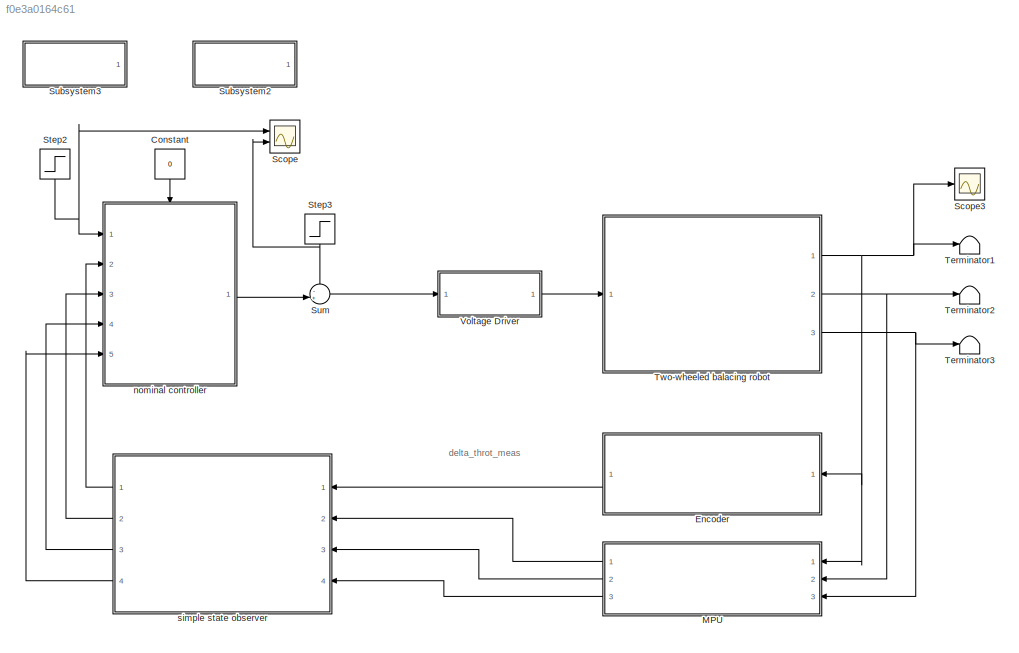
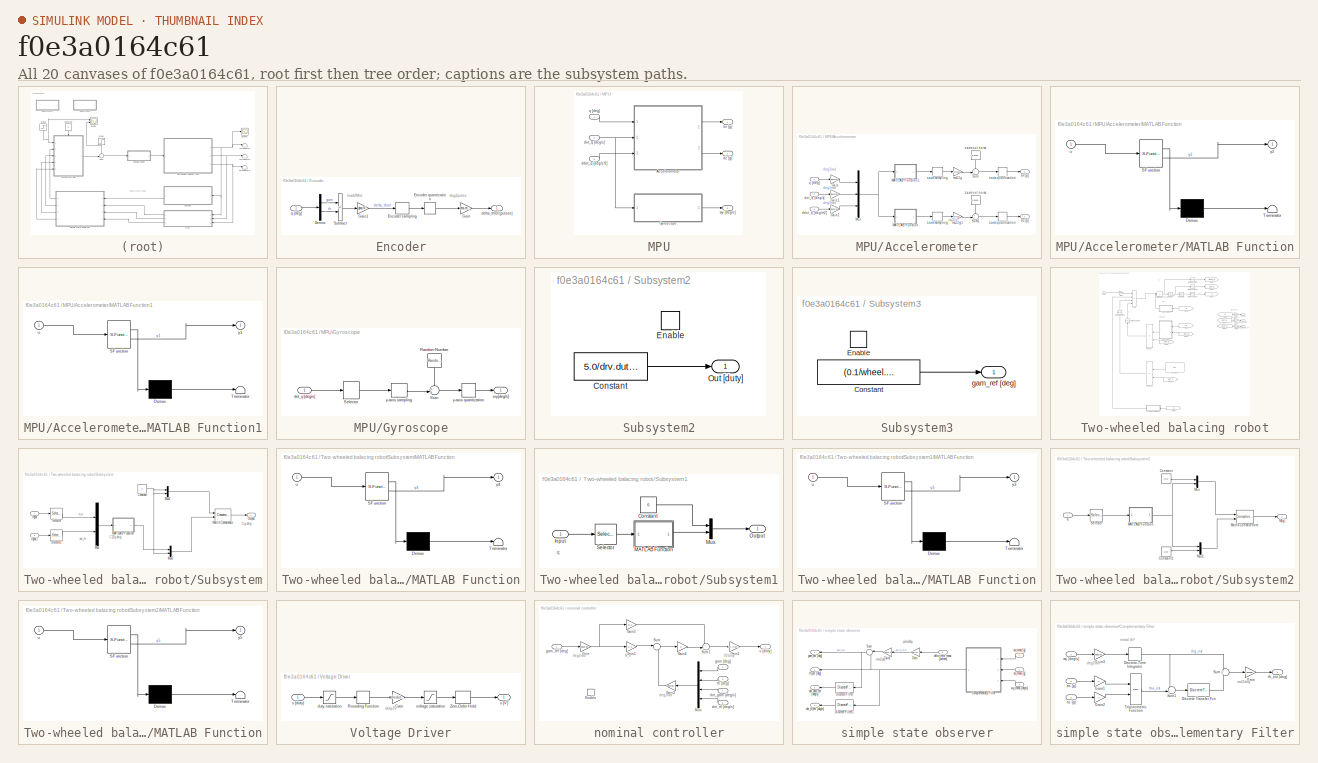
[diagram: thumbnail index - all 20 canvases of the model, root first then tree order]
MODEL slx_f0e3a0164c61
KIND model
CONFIG AbsTol = auto
CONFIG EnableMultiTasking = off
CONFIG FixedStep = auto
CONFIG MaxStep = auto
CONFIG MinStep = auto
CONFIG RelTol = 1e-3
CONFIG SampleTimeConstraint = Unconstrained
CONFIG SolverName = VariableStepAuto
CONFIG StartTime = 0.0
CONFIG StopTime = 12
BLOCK [Constant] Constant
  NameLocation = left
  Value = 0
BLOCK [SubSystem] Encoder
  Ports = [1, 1]
  RequestExecContextInheritance = off
BLOCK [Demux] Encoder/Demux
  Outputs = 2
  Ports = [1, 2]
BLOCK [Quantizer] Encoder/Encoder quantization
  NameLocation = top
  QuantizationInterval = sens.enc.pulse2deg
BLOCK [ZeroOrderHold] Encoder/Encoder sampling
  SampleTime = Ts
BLOCK [Gain] Encoder/Gain
  Gain = sens.enc.deg2pulse
BLOCK [Gain] Encoder/Gain1
  Gain = gbox.N
BLOCK [Sum] Encoder/Subtract
  IconShape = rectangular
  Inputs = +-
  Ports = [2, 1]
BLOCK [Outport] Encoder/delta_throt [pulses]
BLOCK [Inport] Encoder/q [deg]
BLOCK [SubSystem] MPU
  Ports = [3, 3]
  RequestExecContextInheritance = off
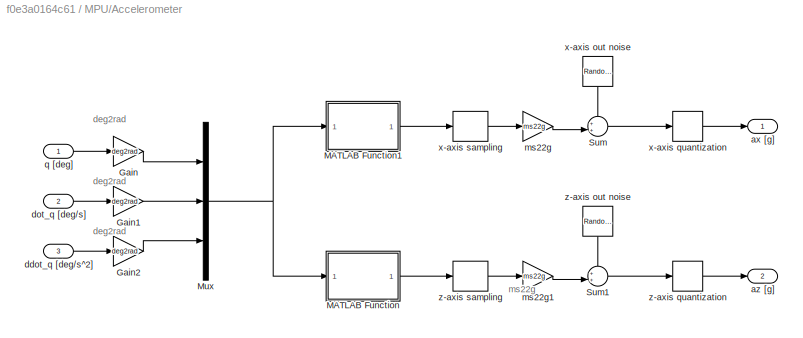
BLOCK [SubSystem] MPU/Accelerometer
  Ports = [3, 2]
  RequestExecContextInheritance = off
BLOCK [Gain] MPU/Accelerometer/Gain
  Gain = deg2rad
BLOCK [Gain] MPU/Accelerometer/Gain1
  Gain = deg2rad
BLOCK [Gain] MPU/Accelerometer/Gain2
  Gain = deg2rad
BLOCK [SubSystem] MPU/Accelerometer/MATLAB Function
  ErrorFcn = Stateflow.Translate.translate
  PermitHierarchicalResolution = ExplicitOnly
  Ports = [1, 1]
  RequestExecContextInheritance = off
  SFBlockType = MATLAB Function
  TreatAsAtomicUnit = on
BLOCK [Demux] MPU/Accelerometer/MATLAB Function/ Demux 
  Outputs = 1
  Ports = [1, 1]
BLOCK [S-Function] MPU/Accelerometer/MATLAB Function/ SFunction 
  EnableBusSupport = on
  FunctionName = sf_sfun
  PortCounts = [1 2]
  Ports = [1, 2]
  SFcnIsStateOwnerBlock = off
  SFunctionDeploymentMode = off
  Tag = Stateflow S-Function 2
BLOCK [Terminator] MPU/Accelerometer/MATLAB Function/ Terminator 
BLOCK [Inport] MPU/Accelerometer/MATLAB Function/u
BLOCK [Outport] MPU/Accelerometer/MATLAB Function/y2
BLOCK [SubSystem] MPU/Accelerometer/MATLAB Function1
  ErrorFcn = Stateflow.Translate.translate
  PermitHierarchicalResolution = ExplicitOnly
  Ports = [1, 1]
  RequestExecContextInheritance = off
  SFBlockType = MATLAB Function
  TreatAsAtomicUnit = on
BLOCK [Demux] MPU/Accelerometer/MATLAB Function1/ Demux 
  Outputs = 1
  Ports = [1, 1]
BLOCK [S-Function] MPU/Accelerometer/MATLAB Function1/ SFunction 
  EnableBusSupport = on
  FunctionName = sf_sfun
  PortCounts = [1 2]
  Ports = [1, 2]
  SFcnIsStateOwnerBlock = off
  SFunctionDeploymentMode = off
  Tag = Stateflow S-Function 1
BLOCK [Terminator] MPU/Accelerometer/MATLAB Function1/ Terminator 
BLOCK [Inport] MPU/Accelerometer/MATLAB Function1/u
BLOCK [Outport] MPU/Accelerometer/MATLAB Function1/y1
BLOCK [Mux] MPU/Accelerometer/Mux
  DisplayOption = bar
  Inputs = 3
  Ports = [3, 1]
BLOCK [Sum] MPU/Accelerometer/Sum
  Inputs = ++|
  NameLocation = top
  Ports = [2, 1]
BLOCK [Sum] MPU/Accelerometer/Sum1
  Inputs = ++|
  NameLocation = top
  Ports = [2, 1]
BLOCK [Outport] MPU/Accelerometer/ax [g]
  IconDisplay = Signal name
BLOCK [Outport] MPU/Accelerometer/az [g]
  IconDisplay = Signal name
  Port = 2
BLOCK [Inport] MPU/Accelerometer/ddot_q [deg//s^2]
  Port = 3
BLOCK [Inport] MPU/Accelerometer/dot_q [deg//s]
  Port = 2
BLOCK [Gain] MPU/Accelerometer/ms22g
  Gain = ms22g
BLOCK [Gain] MPU/Accelerometer/ms22g1
  Gain = ms22g
BLOCK [Inport] MPU/Accelerometer/q [deg]
  IconDisplay = Signal name
BLOCK [RandomNumber] MPU/Accelerometer/x-axis out noise
  NameLocation = top
  SampleTime = Ts
  Variance = sens.mpu.acc.noisevar
BLOCK [Quantizer] MPU/Accelerometer/x-axis quantization
  QuantizationInterval = sens.mpu.acc.LSB2g
BLOCK [ZeroOrderHold] MPU/Accelerometer/x-axis sampling
  SampleTime = Ts
BLOCK [RandomNumber] MPU/Accelerometer/z-axis out noise
  NameLocation = top
  SampleTime = Ts
  Variance = sens.mpu.acc.noisevar
BLOCK [Quantizer] MPU/Accelerometer/z-axis quantization
  QuantizationInterval = sens.mpu.acc.LSB2g
BLOCK [ZeroOrderHold] MPU/Accelerometer/z-axis sampling
  SampleTime = Ts
BLOCK [SubSystem] MPU/Gyroscope
  Ports = [1, 1]
  RequestExecContextInheritance = off
BLOCK [RandomNumber] MPU/Gyroscope/Random Number
  NameLocation = left
  SampleTime = Ts
  Variance = sens.mpu.gyro.noisevar
BLOCK [Selector] MPU/Gyroscope/Selector
  IndexOptions = Index vector (dialog)
  Indices = 2
  InputPortWidth = 2
  OutputSizes = 1
  Ports = [1, 1]
BLOCK [Sum] MPU/Gyroscope/Sum
  Inputs = ++|
  Ports = [2, 1]
BLOCK [Inport] MPU/Gyroscope/dot_q [deg//s]
BLOCK [Outport] MPU/Gyroscope/wy[deg//s]
BLOCK [Quantizer] MPU/Gyroscope/y-axis quantization
  QuantizationInterval = sens.mpu.gyro.LSB2degs
BLOCK [ZeroOrderHold] MPU/Gyroscope/y-axis sampling
  SampleTime = Ts
BLOCK [Outport] MPU/ax [g]
BLOCK [Outport] MPU/az [g]
  Port = 2
BLOCK [Inport] MPU/ddot_q [deg//s^2]
  Port = 3
BLOCK [Inport] MPU/dot_q [deg//s]
  Port = 2
BLOCK [Inport] MPU/q [deg]
BLOCK [Outport] MPU/wy [deg//s]
  Port = 3
BLOCK [Scope] Scope
  Floating = off
  NumInputPorts = 2
  Ports = [2]
  ScopeSpecificationString = Simulink.scopes.TimeScopeBlockCfg('CurrentConfiguration', extmgr.ConfigurationSet(extmgr.Configuration('Core','General UI',true),extmgr.Configuration('Core','Source UI',true),extmgr.Configuration('Sources','WiredSimulink',true,'DataLoggingVariableName','ScopeData1'),extmgr.Configuration('Visuals','Time Domain',true,'SerializedDisplays',{struct('MinYLimReal','-21.06462','MaxYLimReal','189.58162','Y...<+1435ch>
BLOCK [Scope] Scope3
  Floating = off
  NumInputPorts = 1
  Ports = [1]
  ScopeSpecificationString = Simulink.scopes.TimeScopeBlockCfg('CurrentConfiguration', extmgr.ConfigurationSet(extmgr.Configuration('Core','General UI',true),extmgr.Configuration('Core','Source UI',true),extmgr.Configuration('Sources','WiredSimulink',true,'DataLoggingSaveFormat','Array','DataLoggingLimitDataPoints',true,'DataLoggingDecimation','1'),extmgr.Configuration('Visuals','Time Domain',true,'SerializedDisplays',{struct...<+1722ch>
BLOCK [Step] Step2
  After = (0.1/wheel.r)*rad2deg*1
  NameLocation = left
  SampleTime = Ts
  Time = 0
BLOCK [Step] Step3
  After = 5.0/drv.duty2V
  NameLocation = left
  SampleTime = Ts
  Time = 10
BLOCK [SubSystem] Subsystem2
  Ports = [0, 1, 1]
  RequestExecContextInheritance = off
BLOCK [Constant] Subsystem2/Constant
  Value = 5.0/drv.duty2V
BLOCK [EnablePort] Subsystem2/Enable
  Ports = []
BLOCK [Outport] Subsystem2/Out [duty]
BLOCK [SubSystem] Subsystem3
  Ports = [0, 1, 1]
  RequestExecContextInheritance = off
BLOCK [Constant] Subsystem3/Constant
  Value = (0.1/wheel.r)*rad2deg
BLOCK [EnablePort] Subsystem3/Enable
  Ports = []
BLOCK [Outport] Subsystem3/gam_ref [deg]
BLOCK [Sum] Sum
  Inputs = -+|
  Ports = [2, 1]
BLOCK [Terminator] Terminator1
BLOCK [Terminator] Terminator2
BLOCK [Terminator] Terminator3
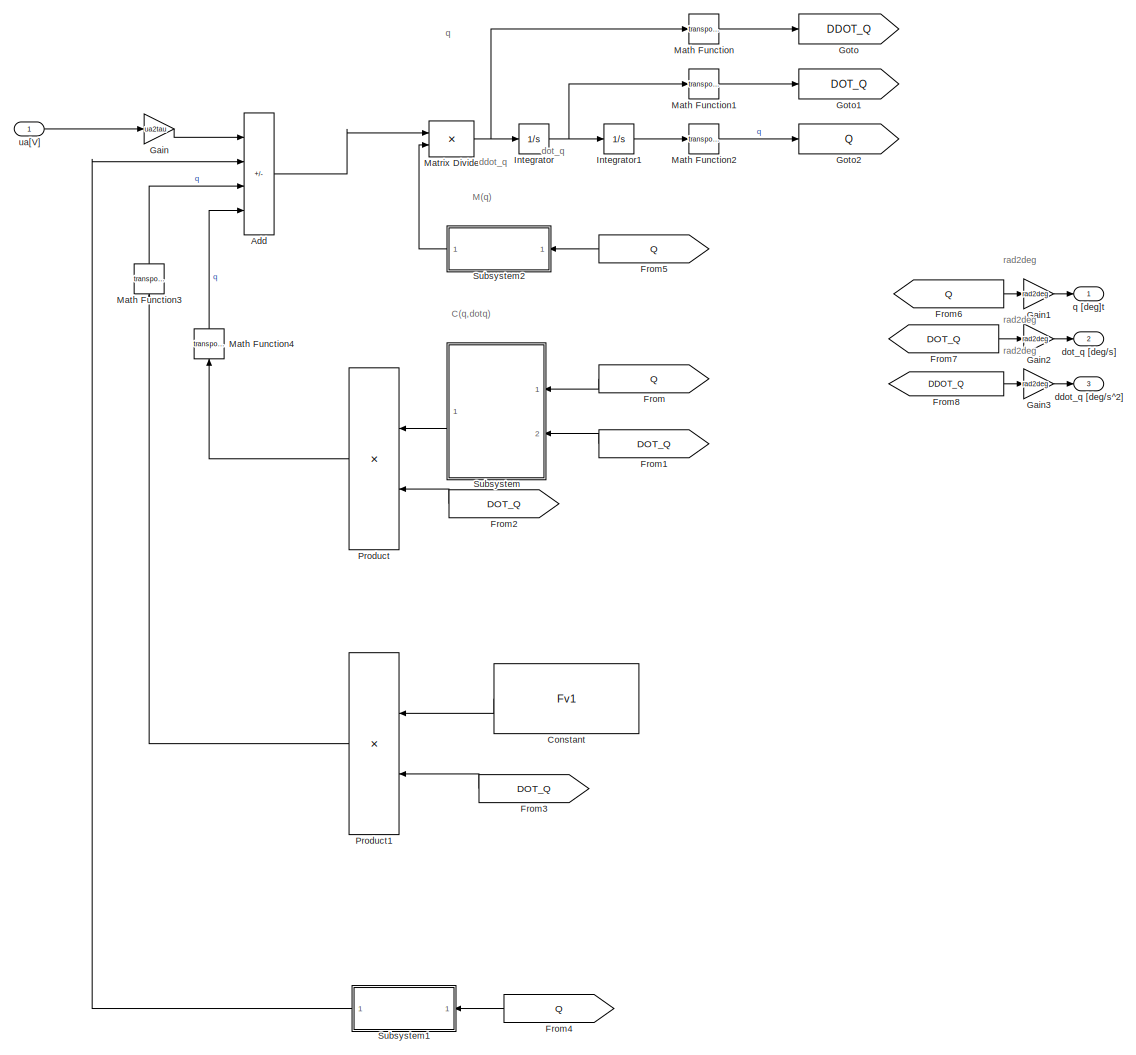
[diagram: Two-wheeled balacing robot - part 1/1, most of the canvas]
BLOCK [SubSystem] Two-wheeled balacing robot
  Ports = [1, 3]
  RequestExecContextInheritance = off
BLOCK [Sum] Two-wheeled balacing robot/Add
  IconShape = rectangular
  Inputs = +---
  Ports = [4, 1]
BLOCK [Constant] Two-wheeled balacing robot/Constant
  Value = Fv1
BLOCK [From] Two-wheeled balacing robot/From
  GotoTag = Q
BLOCK [From] Two-wheeled balacing robot/From1
  GotoTag = DOT_Q
BLOCK [From] Two-wheeled balacing robot/From2
  GotoTag = DOT_Q
BLOCK [From] Two-wheeled balacing robot/From3
  GotoTag = DOT_Q
BLOCK [From] Two-wheeled balacing robot/From4
  GotoTag = Q
BLOCK [From] Two-wheeled balacing robot/From5
  GotoTag = Q
BLOCK [From] Two-wheeled balacing robot/From6
  GotoTag = Q
BLOCK [From] Two-wheeled balacing robot/From7
  GotoTag = DOT_Q
BLOCK [From] Two-wheeled balacing robot/From8
  GotoTag = DDOT_Q
BLOCK [Gain] Two-wheeled balacing robot/Gain
  Gain = ua2tau
  Multiplication = Matrix(K*u)
BLOCK [Gain] Two-wheeled balacing robot/Gain1
  Gain = rad2deg
BLOCK [Gain] Two-wheeled balacing robot/Gain2
  Gain = rad2deg
BLOCK [Gain] Two-wheeled balacing robot/Gain3
  Gain = rad2deg
BLOCK [Goto] Two-wheeled balacing robot/Goto
  GotoTag = DDOT_Q
BLOCK [Goto] Two-wheeled balacing robot/Goto1
  GotoTag = DOT_Q
BLOCK [Goto] Two-wheeled balacing robot/Goto2
  GotoTag = Q
BLOCK [Integrator] Two-wheeled balacing robot/Integrator
  Ports = [1, 1]
BLOCK [Integrator] Two-wheeled balacing robot/Integrator1
  Ports = [1, 1]
BLOCK [Math] Two-wheeled balacing robot/Math Function
  Operator = transpose
  Ports = [1, 1]
BLOCK [Math] Two-wheeled balacing robot/Math Function1
  Operator = transpose
  Ports = [1, 1]
BLOCK [Math] Two-wheeled balacing robot/Math Function2
  Operator = transpose
  Ports = [1, 1]
BLOCK [Math] Two-wheeled balacing robot/Math Function3
  NameLocation = right
  Operator = transpose
  Ports = [1, 1]
BLOCK [Math] Two-wheeled balacing robot/Math Function4
  NameLocation = right
  Operator = transpose
  Ports = [1, 1]
BLOCK [Product] Two-wheeled balacing robot/Matrix Divide
  Inputs = */
  Multiplication = Matrix(*)
  Ports = [2, 1]
BLOCK [Product] Two-wheeled balacing robot/Product
  Multiplication = Matrix(*)
  Ports = [2, 1]
BLOCK [Product] Two-wheeled balacing robot/Product1
  Multiplication = Matrix(*)
  Ports = [2, 1]
BLOCK [SubSystem] Two-wheeled balacing robot/Subsystem
  Ports = [2, 1]
  RequestExecContextInheritance = off
BLOCK [Constant] Two-wheeled balacing robot/Subsystem/Constant
  Value = 0
BLOCK [Inport] Two-wheeled balacing robot/Subsystem/Input
BLOCK [Inport] Two-wheeled balacing robot/Subsystem/Input1
  Port = 2
BLOCK [SubSystem] Two-wheeled balacing robot/Subsystem/MATLAB Function
  ErrorFcn = Stateflow.Translate.translate
  PermitHierarchicalResolution = ExplicitOnly
  Ports = [1, 1]
  RequestExecContextInheritance = off
  SFBlockType = MATLAB Function
  TreatAsAtomicUnit = on
BLOCK [Demux] Two-wheeled balacing robot/Subsystem/MATLAB Function/ Demux 
  Outputs = 1
  Ports = [1, 1]
BLOCK [S-Function] Two-wheeled balacing robot/Subsystem/MATLAB Function/ SFunction 
  EnableBusSupport = on
  FunctionName = sf_sfun
  PortCounts = [1 2]
  Ports = [1, 2]
  SFcnIsStateOwnerBlock = off
  SFunctionDeploymentMode = off
  Tag = Stateflow S-Function 4
BLOCK [Terminator] Two-wheeled balacing robot/Subsystem/MATLAB Function/ Terminator 
BLOCK [Inport] Two-wheeled balacing robot/Subsystem/MATLAB Function/u
BLOCK [Outport] Two-wheeled balacing robot/Subsystem/MATLAB Function/y4
BLOCK [Concatenate] Two-wheeled balacing robot/Subsystem/Matrix Concatenate
  ConcatenateDimension = 2
  Mode = Multidimensional array
  Ports = [2, 1]
BLOCK [Mux] Two-wheeled balacing robot/Subsystem/Mux
  DisplayOption = bar
  Inputs = 2
  Ports = [2, 1]
BLOCK [Mux] Two-wheeled balacing robot/Subsystem/Mux1
  DisplayOption = bar
  Inputs = 2
  Ports = [2, 1]
BLOCK [Mux] Two-wheeled balacing robot/Subsystem/Mux2
  DisplayOption = bar
  Inputs = 2
  Ports = [2, 1]
BLOCK [Outport] Two-wheeled balacing robot/Subsystem/Output
BLOCK [Selector] Two-wheeled balacing robot/Subsystem/Selector
  IndexMode = Zero-based
  IndexOptions = Index vector (dialog)
  Indices = 1
  InputPortWidth = 2
  OutputSizes = 1
  Ports = [1, 1]
BLOCK [Selector] Two-wheeled balacing robot/Subsystem/Selector1
  IndexMode = Zero-based
  IndexOptions = Index vector (dialog)
  Indices = 1
  InputPortWidth = 2
  OutputSizes = 1
  Ports = [1, 1]
BLOCK [SubSystem] Two-wheeled balacing robot/Subsystem1
  Ports = [1, 1]
  RequestExecContextInheritance = off
BLOCK [Constant] Two-wheeled balacing robot/Subsystem1/Constant
  Value = 0
BLOCK [Inport] Two-wheeled balacing robot/Subsystem1/Input
BLOCK [SubSystem] Two-wheeled balacing robot/Subsystem1/MATLAB Function
  ErrorFcn = Stateflow.Translate.translate
  PermitHierarchicalResolution = ExplicitOnly
  Ports = [1, 1]
  RequestExecContextInheritance = off
  SFBlockType = MATLAB Function
  TreatAsAtomicUnit = on
BLOCK [Demux] Two-wheeled balacing robot/Subsystem1/MATLAB Function/ Demux 
  Outputs = 1
  Ports = [1, 1]
BLOCK [S-Function] Two-wheeled balacing robot/Subsystem1/MATLAB Function/ SFunction 
  EnableBusSupport = on
  FunctionName = sf_sfun
  PortCounts = [1 2]
  Ports = [1, 2]
  SFcnIsStateOwnerBlock = off
  SFunctionDeploymentMode = off
  Tag = Stateflow S-Function 3
BLOCK [Terminator] Two-wheeled balacing robot/Subsystem1/MATLAB Function/ Terminator 
BLOCK [Inport] Two-wheeled balacing robot/Subsystem1/MATLAB Function/u
BLOCK [Outport] Two-wheeled balacing robot/Subsystem1/MATLAB Function/y3
BLOCK [Mux] Two-wheeled balacing robot/Subsystem1/Mux
  DisplayOption = bar
  Inputs = 2
  Ports = [2, 1]
BLOCK [Outport] Two-wheeled balacing robot/Subsystem1/Output
BLOCK [Selector] Two-wheeled balacing robot/Subsystem1/Selector
  IndexMode = Zero-based
  IndexOptions = Index vector (dialog)
  Indices = 1
  InputPortWidth = 2
  OutputSizes = 1
  Ports = [1, 1]
BLOCK [SubSystem] Two-wheeled balacing robot/Subsystem2
  Ports = [1, 1]
  RequestExecContextInheritance = off
BLOCK [Constant] Two-wheeled balacing robot/Subsystem2/Constant
  Value = M11
BLOCK [Constant] Two-wheeled balacing robot/Subsystem2/Constant1
  Value = M22
BLOCK [Outport] Two-wheeled balacing robot/Subsystem2/M(q)
BLOCK [SubSystem] Two-wheeled balacing robot/Subsystem2/MATLAB Function
  ErrorFcn = Stateflow.Translate.translate
  PermitHierarchicalResolution = ExplicitOnly
  Ports = [1, 1]
  RequestExecContextInheritance = off
  SFBlockType = MATLAB Function
  TreatAsAtomicUnit = on
BLOCK [Demux] Two-wheeled balacing robot/Subsystem2/MATLAB Function/ Demux 
  Outputs = 1
  Ports = [1, 1]
BLOCK [S-Function] Two-wheeled balacing robot/Subsystem2/MATLAB Function/ SFunction 
  EnableBusSupport = on
  FunctionName = sf_sfun
  PortCounts = [1 2]
  Ports = [1, 2]
  SFcnIsStateOwnerBlock = off
  SFunctionDeploymentMode = off
  Tag = Stateflow S-Function 5
BLOCK [Terminator] Two-wheeled balacing robot/Subsystem2/MATLAB Function/ Terminator 
BLOCK [Inport] Two-wheeled balacing robot/Subsystem2/MATLAB Function/u
BLOCK [Outport] Two-wheeled balacing robot/Subsystem2/MATLAB Function/y5
BLOCK [Concatenate] Two-wheeled balacing robot/Subsystem2/Matrix Concatenate
  ConcatenateDimension = 2
  Mode = Multidimensional array
  Ports = [2, 1]
BLOCK [Mux] Two-wheeled balacing robot/Subsystem2/Mux
  DisplayOption = bar
  Inputs = 2
  Ports = [2, 1]
BLOCK [Mux] Two-wheeled balacing robot/Subsystem2/Mux1
  DisplayOption = bar
  Inputs = 2
  Ports = [2, 1]
BLOCK [Selector] Two-wheeled balacing robot/Subsystem2/Selector
  IndexMode = Zero-based
  IndexOptions = Index vector (dialog)
  Indices = 1
  InputPortWidth = 2
  OutputSizes = 1
  Ports = [1, 1]
BLOCK [Inport] Two-wheeled balacing robot/Subsystem2/q
BLOCK [Outport] Two-wheeled balacing robot/ddot_q [deg//s^2]
  Port = 3
BLOCK [Outport] Two-wheeled balacing robot/dot_q [deg//s]
  Port = 2
BLOCK [Outport] Two-wheeled balacing robot/q [deg]t
BLOCK [Inport] Two-wheeled balacing robot/ua[V]
BLOCK [SubSystem] Voltage Driver
  Ports = [1, 1]
  RequestExecContextInheritance = off
BLOCK [Gain] Voltage Driver/Gain
  Gain = drv.duty2V
BLOCK [Rounding] Voltage Driver/Rounding Function
  Operator = fix
BLOCK [ZeroOrderHold] Voltage Driver/Zero-Order Hold
  SampleTime = Ts
BLOCK [Saturate] Voltage Driver/duty saturation
  LowerLimit = -drv.dutymax
  UpperLimit = drv.dutymax
BLOCK [Outport] Voltage Driver/u [V]
BLOCK [Inport] Voltage Driver/u [duty]
BLOCK [Saturate] Voltage Driver/voltage saturation
  LowerLimit = -drv.Vbus
  UpperLimit = drv.Vbus
BLOCK [SubSystem] nominal controller
  Ports = [5, 1, 1]
  RequestExecContextInheritance = off
BLOCK [EnablePort] nominal controller/Enable
  Ports = []
BLOCK [Gain] nominal controller/Gain
  Gain = deg2rad
BLOCK [Gain] nominal controller/Gain1
  Gain = N_x
  Multiplication = Matrix(K*u)
BLOCK [Gain] nominal controller/Gain2
  Gain = N_u
BLOCK [Gain] nominal controller/Gain3
  Gain = deg2rad
  NameLocation = top
BLOCK [Gain] nominal controller/Gain4
  Gain = K
  Multiplication = Matrix(K*u)
BLOCK [Gain] nominal controller/Gain5
  Gain = drv.V2duty
BLOCK [Mux] nominal controller/Mux
  DisplayOption = bar
  Ports = [4, 1]
BLOCK [Sum] nominal controller/Sum
  Inputs = |+-
  Ports = [2, 1]
BLOCK [Sum] nominal controller/Sum1
  Inputs = ++|
  Ports = [2, 1]
BLOCK [Inport] nominal controller/dot_gam [deg//s]
  Port = 4
BLOCK [Inport] nominal controller/dot_th [deg//s]
  Port = 5
BLOCK [Inport] nominal controller/gam [deg]
  Port = 2
BLOCK [Inport] nominal controller/gam_ref [deg]
BLOCK [Inport] nominal controller/th [deg]
  Port = 3
BLOCK [Outport] nominal controller/u [duty]
BLOCK [SubSystem] simple state observer
  Ports = [4, 4]
  RequestExecContextInheritance = off
BLOCK [SubSystem] simple state observer/Complementary Filter
  Ports = [3, 1]
  RequestExecContextInheritance = off
BLOCK [DiscreteTransferFcn] simple state observer/Complementary Filter/Discrete Transfer Fcn
  Denominator = [0.4547 -0.4447]
  InputPortMap = u0
  Numerator = [0.01]
  Ports = [1, 1]
  SampleTime = Ts
BLOCK [DiscreteIntegrator] simple state observer/Complementary Filter/Discrete-Time Integrator
  ICPrevOutput = DiscIntNeverNeededParam
  ICPrevScaledInput = DiscIntNeverNeededParam
  InitialConditionSetting = Auto
  Ports = [1, 1]
  SampleTime = Ts
BLOCK [Gain] simple state observer/Complementary Filter/Gain
  Gain = rad2deg
BLOCK [Gain] simple state observer/Complementary Filter/Gain1
BLOCK [Gain] simple state observer/Complementary Filter/Gain2
  Gain = -1
BLOCK [Gain] simple state observer/Complementary Filter/Gain3
  Gain = deg2rad
BLOCK [Sum] simple state observer/Complementary Filter/Sum
  Inputs = +|+
  Ports = [2, 1]
BLOCK [Sum] simple state observer/Complementary Filter/Sum1
  Inputs = -+|
  Ports = [2, 1]
BLOCK [Trigonometry] simple state observer/Complementary Filter/Trigonometric Function
  Operator = atan2
  Ports = [2, 1]
BLOCK [Inport] simple state observer/Complementary Filter/ax [g]
  Port = 2
BLOCK [Inport] simple state observer/Complementary Filter/az [g]
  Port = 3
BLOCK [Outport] simple state observer/Complementary Filter/th_est [deg]
BLOCK [Inport] simple state observer/Complementary Filter/wy [deg//s]
BLOCK [DiscreteFilter] simple state observer/Discrete Filter
  Denominator = [3*Ts]
  InputPortMap = u0
  Numerator = [1 0 0 -1]
  Ports = [1, 1]
  SampleTime = Ts
BLOCK [DiscreteFilter] simple state observer/Discrete Filter1
  Denominator = [3*Ts]
  InputPortMap = u0
  Numerator = [1 0 0 -1]
  Ports = [1, 1]
  SampleTime = Ts
BLOCK [Gain] simple state observer/Gain
  Gain = sens.enc.pulse2deg
BLOCK [Gain] simple state observer/Gain1
  Gain = 1/gbox.N
BLOCK [Sum] simple state observer/Sum
  Inputs = |++
  Ports = [2, 1]
BLOCK [Inport] simple state observer/ax_meas [g]
  Port = 2
BLOCK [Inport] simple state observer/az_meas [g]
  Port = 3
BLOCK [Inport] simple state observer/delta_throt_meas [pulses]
BLOCK [Outport] simple state observer/dot_gam_est [deg//s]
  Port = 3
BLOCK [Outport] simple state observer/dot_th_est [deg//s]
  Port = 4
BLOCK [Outport] simple state observer/gam_est [deg]
BLOCK [Outport] simple state observer/th_est [deg]
  Port = 2
BLOCK [Inport] simple state observer/wy_meas [deg//s]
  Port = 4
ANNOTATION (root): delta_throt_meas
ANNOTATION Encoder: deg2pulse
ANNOTATION Encoder: load2Mot
ANNOTATION MPU/Accelerometer: deg2rad
ANNOTATION MPU/Accelerometer: ms22g
ANNOTATION Two-wheeled balacing robot: C(q,dotq)
ANNOTATION Two-wheeled balacing robot: M(q)
ANNOTATION Two-wheeled balacing robot: ddot_q
ANNOTATION Two-wheeled balacing robot: dot_q
ANNOTATION Two-wheeled balacing robot: q
ANNOTATION Two-wheeled balacing robot: rad2deg
ANNOTATION Two-wheeled balacing robot/Subsystem: C(q,dotq)
ANNOTATION Two-wheeled balacing robot/Subsystem: C12(q,dotq)
ANNOTATION Two-wheeled balacing robot/Subsystem: TH
ANNOTATION Two-wheeled balacing robot/Subsystem: dot_th
ANNOTATION Two-wheeled balacing robot/Subsystem1: q
ANNOTATION Voltage Driver: duty2V
ANNOTATION nominal controller: N_x
ANNOTATION nominal controller: V2duty
ANNOTATION nominal controller: deg2rad
ANNOTATION simple state observer: mot2load
ANNOTATION simple state observer: pulse2deg
ANNOTATION simple state observer/Complementary Filter: deg2rad
ANNOTATION simple state observer/Complementary Filter: initial th?
ANNOTATION simple state observer/Complementary Filter: rad2deg
LINE Constant:1 -> nominal controller:enable
LINE Encoder/Demux:1 -> Encoder/Subtract:1
LINE Encoder/Demux:2 -> Encoder/Subtract:2
LINE Encoder/Encoder quantization:1 -> Encoder/Gain:1
LINE Encoder/Encoder sampling:1 -> Encoder/Encoder quantization:1
LINE Encoder/Gain1:1 -> Encoder/Encoder sampling:1
LINE Encoder/Gain:1 -> Encoder/delta_throt [pulses]:1
LINE Encoder/Subtract:1 -> Encoder/Gain1:1
LINE Encoder/q [deg]:1 -> Encoder/Demux:1
LINE Encoder:1 -> simple state observer:1
LINE MPU/Accelerometer/Gain1:1 -> MPU/Accelerometer/Mux:2
LINE MPU/Accelerometer/Gain2:1 -> MPU/Accelerometer/Mux:3
LINE MPU/Accelerometer/Gain:1 -> MPU/Accelerometer/Mux:1
LINE MPU/Accelerometer/MATLAB Function1:1 -> MPU/Accelerometer/x-axis sampling:1
LINE MPU/Accelerometer/MATLAB Function:1 -> MPU/Accelerometer/z-axis sampling:1
NET MPU/Accelerometer/Mux:1 -> MPU/Accelerometer/MATLAB Function1:1, MPU/Accelerometer/MATLAB Function:1
LINE MPU/Accelerometer/Sum1:1 -> MPU/Accelerometer/z-axis quantization:1
LINE MPU/Accelerometer/Sum:1 -> MPU/Accelerometer/x-axis quantization:1
LINE MPU/Accelerometer/ddot_q [deg//s^2]:1 -> MPU/Accelerometer/Gain2:1
LINE MPU/Accelerometer/dot_q [deg//s]:1 -> MPU/Accelerometer/Gain1:1
LINE MPU/Accelerometer/ms22g1:1 -> MPU/Accelerometer/Sum1:2
LINE MPU/Accelerometer/ms22g:1 -> MPU/Accelerometer/Sum:2
LINE MPU/Accelerometer/q [deg]:1 -> MPU/Accelerometer/Gain:1
LINE MPU/Accelerometer/x-axis out noise:1 -> MPU/Accelerometer/Sum:1
LINE MPU/Accelerometer/x-axis quantization:1 -> MPU/Accelerometer/ax [g]:1
LINE MPU/Accelerometer/x-axis sampling:1 -> MPU/Accelerometer/ms22g:1
LINE MPU/Accelerometer/z-axis out noise:1 -> MPU/Accelerometer/Sum1:1
LINE MPU/Accelerometer/z-axis quantization:1 -> MPU/Accelerometer/az [g]:1
LINE MPU/Accelerometer/z-axis sampling:1 -> MPU/Accelerometer/ms22g1:1
LINE MPU/Accelerometer:1 -> MPU/ax [g]:1
LINE MPU/Accelerometer:2 -> MPU/az [g]:1
LINE MPU/Gyroscope/Random Number:1 -> MPU/Gyroscope/Sum:1
LINE MPU/Gyroscope/Selector:1 -> MPU/Gyroscope/y-axis sampling:1
LINE MPU/Gyroscope/Sum:1 -> MPU/Gyroscope/y-axis quantization:1
LINE MPU/Gyroscope/dot_q [deg//s]:1 -> MPU/Gyroscope/Selector:1
LINE MPU/Gyroscope/y-axis quantization:1 -> MPU/Gyroscope/wy[deg//s]:1
LINE MPU/Gyroscope/y-axis sampling:1 -> MPU/Gyroscope/Sum:2
LINE MPU/Gyroscope:1 -> MPU/wy [deg//s]:1
LINE MPU/ddot_q [deg//s^2]:1 -> MPU/Accelerometer:3
NET MPU/dot_q [deg//s]:1 -> MPU/Accelerometer:2, MPU/Gyroscope:1
LINE MPU/q [deg]:1 -> MPU/Accelerometer:1
LINE MPU:1 -> simple state observer:2
LINE MPU:2 -> simple state observer:3
LINE MPU:3 -> simple state observer:4
NET Step2:1 -> Scope:1, nominal controller:1
NET Step3:1 -> Scope:2, Sum:1
LINE Subsystem2/Constant:1 -> Subsystem2/Out [duty]:1
LINE Subsystem3/Constant:1 -> Subsystem3/gam_ref [deg]:1
LINE Sum:1 -> Voltage Driver:1
LINE Two-wheeled balacing robot/Add:1 -> Two-wheeled balacing robot/Matrix Divide:1
LINE Two-wheeled balacing robot/Constant:1 -> Two-wheeled balacing robot/Product1:1
LINE Two-wheeled balacing robot/From1:1 -> Two-wheeled balacing robot/Subsystem:2
LINE Two-wheeled balacing robot/From2:1 -> Two-wheeled balacing robot/Product:2
LINE Two-wheeled balacing robot/From3:1 -> Two-wheeled balacing robot/Product1:2
LINE Two-wheeled balacing robot/From4:1 -> Two-wheeled balacing robot/Subsystem1:1
LINE Two-wheeled balacing robot/From5:1 -> Two-wheeled balacing robot/Subsystem2:1
LINE Two-wheeled balacing robot/From6:1 -> Two-wheeled balacing robot/Gain1:1
LINE Two-wheeled balacing robot/From7:1 -> Two-wheeled balacing robot/Gain2:1
LINE Two-wheeled balacing robot/From8:1 -> Two-wheeled balacing robot/Gain3:1
LINE Two-wheeled balacing robot/From:1 -> Two-wheeled balacing robot/Subsystem:1
LINE Two-wheeled balacing robot/Gain1:1 -> Two-wheeled balacing robot/q [deg]t:1
LINE Two-wheeled balacing robot/Gain2:1 -> Two-wheeled balacing robot/dot_q [deg//s]:1
LINE Two-wheeled balacing robot/Gain3:1 -> Two-wheeled balacing robot/ddot_q [deg//s^2]:1
LINE Two-wheeled balacing robot/Gain:1 -> Two-wheeled balacing robot/Add:1
LINE Two-wheeled balacing robot/Integrator1:1 -> Two-wheeled balacing robot/Math Function2:1
NET Two-wheeled balacing robot/Integrator:1 -> Two-wheeled balacing robot/Integrator1:1, Two-wheeled balacing robot/Math Function1:1
LINE Two-wheeled balacing robot/Math Function1:1 -> Two-wheeled balacing robot/Goto1:1
LINE Two-wheeled balacing robot/Math Function2:1 -> Two-wheeled balacing robot/Goto2:1
LINE Two-wheeled balacing robot/Math Function3:1 -> Two-wheeled balacing robot/Add:3
LINE Two-wheeled balacing robot/Math Function4:1 -> Two-wheeled balacing robot/Add:4
LINE Two-wheeled balacing robot/Math Function:1 -> Two-wheeled balacing robot/Goto:1
NET Two-wheeled balacing robot/Matrix Divide:1 -> Two-wheeled balacing robot/Integrator:1, Two-wheeled balacing robot/Math Function:1
LINE Two-wheeled balacing robot/Product1:1 -> Two-wheeled balacing robot/Math Function3:1
LINE Two-wheeled balacing robot/Product:1 -> Two-wheeled balacing robot/Math Function4:1
NET Two-wheeled balacing robot/Subsystem/Constant:1 -> Two-wheeled balacing robot/Subsystem/Mux1:1, Two-wheeled balacing robot/Subsystem/Mux1:2, Two-wheeled balacing robot/Subsystem/Mux2:2
LINE Two-wheeled balacing robot/Subsystem/Input1:1 -> Two-wheeled balacing robot/Subsystem/Selector1:1
LINE Two-wheeled balacing robot/Subsystem/Input:1 -> Two-wheeled balacing robot/Subsystem/Selector:1
LINE Two-wheeled balacing robot/Subsystem/MATLAB Function:1 -> Two-wheeled balacing robot/Subsystem/Mux2:1
LINE Two-wheeled balacing robot/Subsystem/Matrix Concatenate:1 -> Two-wheeled balacing robot/Subsystem/Output:1
LINE Two-wheeled balacing robot/Subsystem/Mux1:1 -> Two-wheeled balacing robot/Subsystem/Matrix Concatenate:1
LINE Two-wheeled balacing robot/Subsystem/Mux2:1 -> Two-wheeled balacing robot/Subsystem/Matrix Concatenate:2
LINE Two-wheeled balacing robot/Subsystem/Mux:1 -> Two-wheeled balacing robot/Subsystem/MATLAB Function:1
LINE Two-wheeled balacing robot/Subsystem/Selector1:1 -> Two-wheeled balacing robot/Subsystem/Mux:2
LINE Two-wheeled balacing robot/Subsystem/Selector:1 -> Two-wheeled balacing robot/Subsystem/Mux:1
LINE Two-wheeled balacing robot/Subsystem1/Constant:1 -> Two-wheeled balacing robot/Subsystem1/Mux:1
LINE Two-wheeled balacing robot/Subsystem1/Input:1 -> Two-wheeled balacing robot/Subsystem1/Selector:1
LINE Two-wheeled balacing robot/Subsystem1/MATLAB Function:1 -> Two-wheeled balacing robot/Subsystem1/Mux:2
LINE Two-wheeled balacing robot/Subsystem1/Mux:1 -> Two-wheeled balacing robot/Subsystem1/Output:1
LINE Two-wheeled balacing robot/Subsystem1/Selector:1 -> Two-wheeled balacing robot/Subsystem1/MATLAB Function:1
LINE Two-wheeled balacing robot/Subsystem1:1 -> Two-wheeled balacing robot/Add:2
LINE Two-wheeled balacing robot/Subsystem2/Constant1:1 -> Two-wheeled balacing robot/Subsystem2/Mux1:2
LINE Two-wheeled balacing robot/Subsystem2/Constant:1 -> Two-wheeled balacing robot/Subsystem2/Mux:1
NET Two-wheeled balacing robot/Subsystem2/MATLAB Function:1 -> Two-wheeled balacing robot/Subsystem2/Mux1:1, Two-wheeled balacing robot/Subsystem2/Mux:2
LINE Two-wheeled balacing robot/Subsystem2/Matrix Concatenate:1 -> Two-wheeled balacing robot/Subsystem2/M(q):1
LINE Two-wheeled balacing robot/Subsystem2/Mux1:1 -> Two-wheeled balacing robot/Subsystem2/Matrix Concatenate:2
LINE Two-wheeled balacing robot/Subsystem2/Mux:1 -> Two-wheeled balacing robot/Subsystem2/Matrix Concatenate:1
LINE Two-wheeled balacing robot/Subsystem2/Selector:1 -> Two-wheeled balacing robot/Subsystem2/MATLAB Function:1
LINE Two-wheeled balacing robot/Subsystem2/q:1 -> Two-wheeled balacing robot/Subsystem2/Selector:1
LINE Two-wheeled balacing robot/Subsystem2:1 -> Two-wheeled balacing robot/Matrix Divide:2
LINE Two-wheeled balacing robot/Subsystem:1 -> Two-wheeled balacing robot/Product:1
LINE Two-wheeled balacing robot/ua[V]:1 -> Two-wheeled balacing robot/Gain:1
NET Two-wheeled balacing robot:1 -> Encoder:1, MPU:1, Scope3:1, Terminator1:1
NET Two-wheeled balacing robot:2 -> MPU:2, Terminator2:1
NET Two-wheeled balacing robot:3 -> MPU:3, Terminator3:1
LINE Voltage Driver/Gain:1 -> Voltage Driver/voltage saturation:1
LINE Voltage Driver/Rounding Function:1 -> Voltage Driver/Gain:1
LINE Voltage Driver/Zero-Order Hold:1 -> Voltage Driver/u [V]:1
LINE Voltage Driver/duty saturation:1 -> Voltage Driver/Rounding Function:1
LINE Voltage Driver/u [duty]:1 -> Voltage Driver/duty saturation:1
LINE Voltage Driver/voltage saturation:1 -> Voltage Driver/Zero-Order Hold:1
LINE Voltage Driver:1 -> Two-wheeled balacing robot:1
LINE nominal controller/Gain1:1 -> nominal controller/Sum:1
LINE nominal controller/Gain2:1 -> nominal controller/Sum1:1
LINE nominal controller/Gain3:1 -> nominal controller/Sum:2
LINE nominal controller/Gain4:1 -> nominal controller/Sum1:2
LINE nominal controller/Gain5:1 -> nominal controller/u [duty]:1
NET nominal controller/Gain:1 -> nominal controller/Gain1:1, nominal controller/Gain2:1
LINE nominal controller/Mux:1 -> nominal controller/Gain3:1
LINE nominal controller/Sum1:1 -> nominal controller/Gain5:1
LINE nominal controller/Sum:1 -> nominal controller/Gain4:1
LINE nominal controller/dot_gam [deg//s]:1 -> nominal controller/Mux:3
LINE nominal controller/dot_th [deg//s]:1 -> nominal controller/Mux:4
LINE nominal controller/gam [deg]:1 -> nominal controller/Mux:1
LINE nominal controller/gam_ref [deg]:1 -> nominal controller/Gain:1
LINE nominal controller/th [deg]:1 -> nominal controller/Mux:2
LINE nominal controller:1 -> Sum:2
LINE simple state observer/Complementary Filter/Discrete Transfer Fcn:1 -> simple state observer/Complementary Filter/Sum:2
NET simple state observer/Complementary Filter/Discrete-Time Integrator:1 -> simple state observer/Complementary Filter/Sum1:1, simple state observer/Complementary Filter/Sum:1
LINE simple state observer/Complementary Filter/Gain1:1 -> simple state observer/Complementary Filter/Trigonometric Function:1
LINE simple state observer/Complementary Filter/Gain2:1 -> simple state observer/Complementary Filter/Trigonometric Function:2
LINE simple state observer/Complementary Filter/Gain3:1 -> simple state observer/Complementary Filter/Discrete-Time Integrator:1
LINE simple state observer/Complementary Filter/Gain:1 -> simple state observer/Complementary Filter/th_est [deg]:1
LINE simple state observer/Complementary Filter/Sum1:1 -> simple state observer/Complementary Filter/Discrete Transfer Fcn:1
LINE simple state observer/Complementary Filter/Sum:1 -> simple state observer/Complementary Filter/Gain:1
LINE simple state observer/Complementary Filter/Trigonometric Function:1 -> simple state observer/Complementary Filter/Sum1:2
LINE simple state observer/Complementary Filter/ax [g]:1 -> simple state observer/Complementary Filter/Gain1:1
LINE simple state observer/Complementary Filter/az [g]:1 -> simple state observer/Complementary Filter/Gain2:1
LINE simple state observer/Complementary Filter/wy [deg//s]:1 -> simple state observer/Complementary Filter/Gain3:1
NET simple state observer/Complementary Filter:1 -> simple state observer/Discrete Filter1:1, simple state observer/Sum:2, simple state observer/th_est [deg]:1
LINE simple state observer/Discrete Filter1:1 -> simple state observer/dot_th_est [deg//s]:1
LINE simple state observer/Discrete Filter:1 -> simple state observer/dot_gam_est [deg//s]:1
LINE simple state observer/Gain1:1 -> simple state observer/Sum:1
LINE simple state observer/Gain:1 -> simple state observer/Gain1:1
NET simple state observer/Sum:1 -> simple state observer/Discrete Filter:1, simple state observer/gam_est [deg]:1
LINE simple state observer/ax_meas [g]:1 -> simple state observer/Complementary Filter:1
LINE simple state observer/az_meas [g]:1 -> simple state observer/Complementary Filter:2
LINE simple state observer/delta_throt_meas [pulses]:1 -> simple state observer/Gain:1
LINE simple state observer/wy_meas [deg//s]:1 -> simple state observer/Complementary Filter:3
LINE simple state observer:1 -> nominal controller:2
LINE simple state observer:2 -> nominal controller:3
LINE simple state observer:3 -> nominal controller:4
LINE simple state observer:4 -> nominal controller:5
note: NET lines group one-source signal fan-out (src -> all destinations, sorted); 1:1 wires keep LINE
CHART MPU/Accelerometer/MATLAB Function states=1 transitions=1
  STATE_LABEL 'eML_blk_kernel()'
  STATE_LABEL 'SCRIPT:\nfunction y2 = zaxis(u)\nwheel.r=0.034;\nsens.mpu.zb=0.0135;\ng=9.81;\ny2 = wheel.r*u(5)*sin(u(2)) - sens.mpu.zb*(u(4))^2 - g*cos(u(2));\n\n'
CHART Two-wheeled balacing robot/Subsystem1/MATLAB Function states=1 transitions=1
  STATE_LABEL 'eML_blk_kernel()'
  STATE_LABEL 'SCRIPT:\nfunction y3 = gf(u)\nbody.m=1.0555;\nbody.zb=0.046047844623401;\nmot.rot.m=0.07525;\nmot.rot.zb=-0.007;\ng=9.81;\ng2=-(body.m*body.zb+2*mot.rot.m*mot.rot.zb)*g;\ny3=g2*sin(u);\n\n'
CHART Two-wheeled balacing robot/Subsystem/MATLAB Function states=1 transitions=1
  STATE_LABEL 'eML_blk_kernel()'
  STATE_LABEL 'SCRIPT:\nfunction y4 = dfcn(u)\nbody.m=1.0555;\nbody.zb=0.046047844623401;\nmot.rot.m=0.07525;\nmot.rot.zb=-0.007;\nwheel.r=0.034;\nC12=(body.m*body.zb+2*mot.rot.m*mot.rot.zb)*wheel.r;\ny4=-C12*sin(u(1))*u(2);\n\n'
CHART Two-wheeled balacing robot/Subsystem2/MATLAB Function states=1 transitions=1
  STATE_LABEL 'eML_blk_kernel()'
  STATE_LABEL 'SCRIPT:\nfunction y5 = fcn(u)\ngbox.N=30;\nmot.rot.Iyy=8.807636250000001e-06;\nbody.m=1.0555;\nbody.zb=0.046047844623401;\nmot.rot.m=0.07525;\nmot.rot.zb=-0.007;\nwheel.r=0.034000000000000;\nx=2*gbox.N*(1-gbox.N)*mot.rot.Iyy;\ny5 = x + (body.m*body.zb+2*mot.rot.m*mot.rot.zb)*wheel.r*cos(u);\n'
CHART MPU/Accelerometer/MATLAB Function1 states=1 transitions=1
  STATE_LABEL 'eML_blk_kernel()'
  STATE_LABEL 'SCRIPT:\nfunction y1 = xaxis(u)\nsens.mpu.zb=0.0135;\nwheel.r=0.034;\ng=9.81;\ny1 = wheel.r*u(5)*cos(u(2)) + sens.mpu.zb*u(6) + g*sin(u(2));\n\n'
CHART  states=0 transitions=0
CHART  states=0 transitions=0
CHART  states=0 transitions=0
CHART  states=0 transitions=0
CHART  states=0 transitions=0
